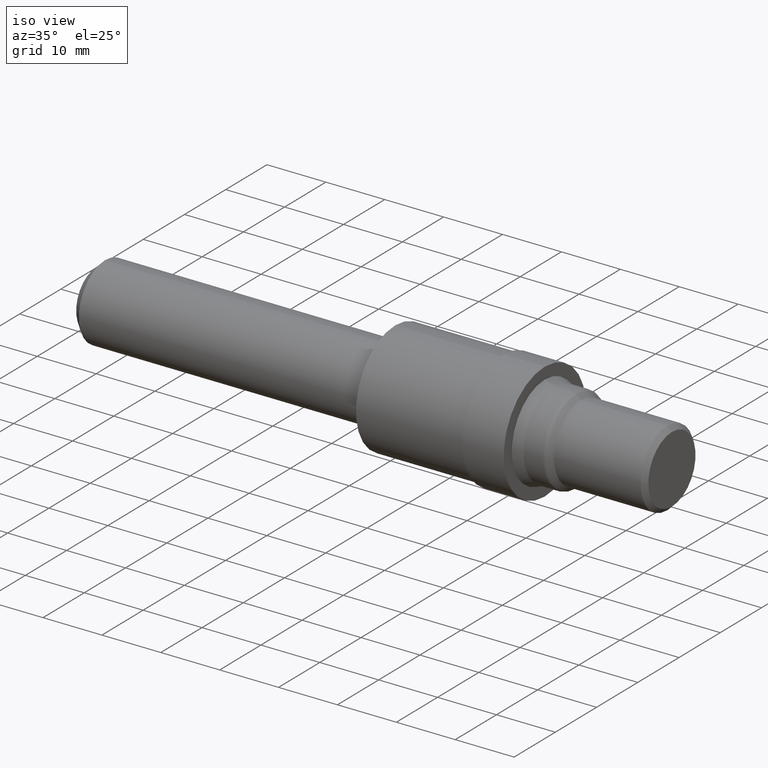
[diagram: clean part render]
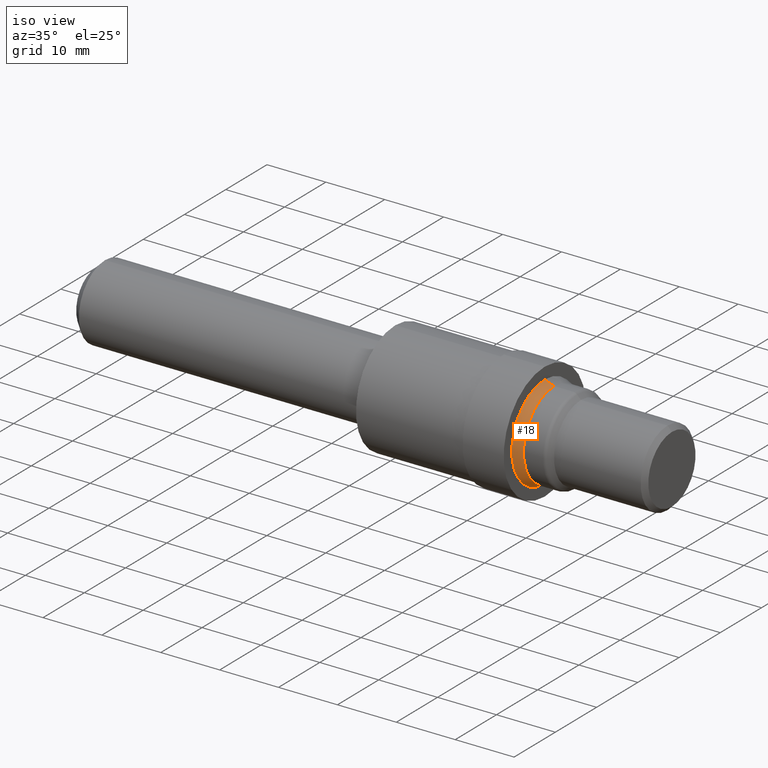
[diagram: same view with one face highlighted and labeled with its STEP entity id]
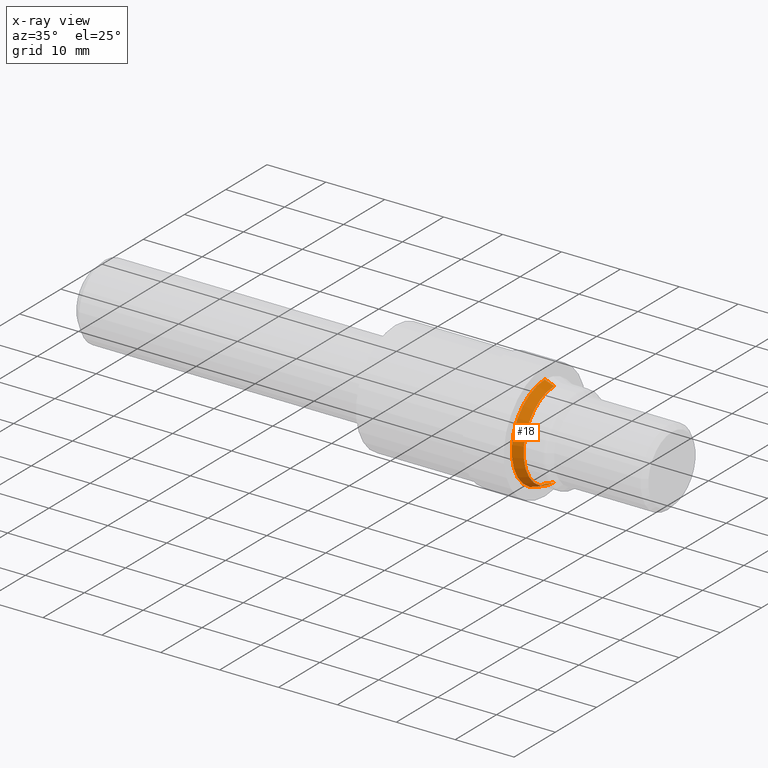
[diagram: x-ray of the same camera — body ghosted, the highlighted face saturated]
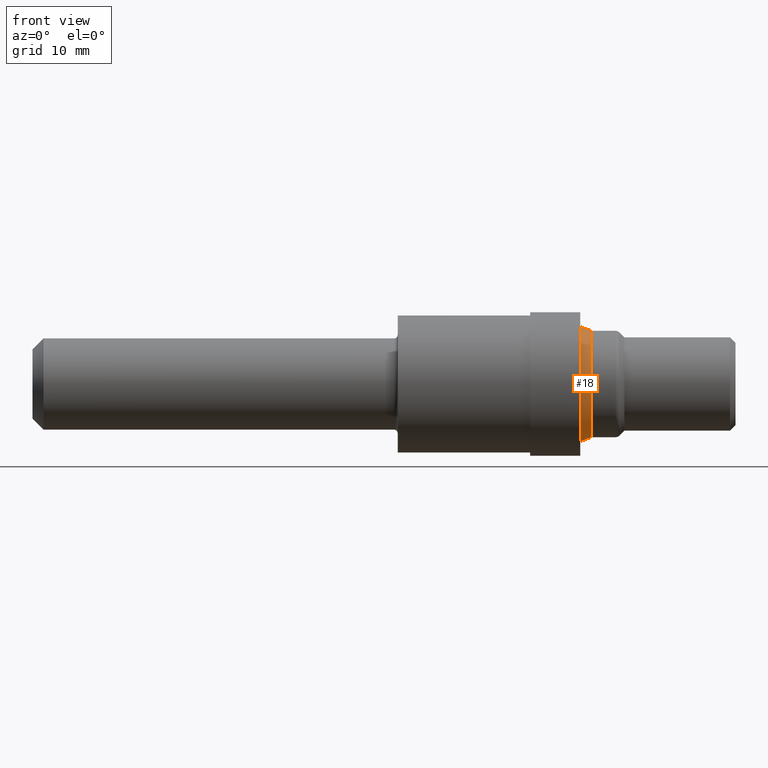
[diagram: same view with one face highlighted and labeled with its STEP entity id]
A machine part, iso view. The second image highlights one B-rep face of the part: STEP entity #18.
The next image is the same camera in x-ray: the body ghosted, the highlighted face saturated — about 0% of this face is hidden behind the body in this view.
A second angle (front view) of the same face is appended — the face is thin or edge-on in the first view.
In plain terms, the highlighted conical surface has half-angle 20.5 deg.
Its self-contained STEP definition (entity closure, byte-faithful):
#18 = ADVANCED_FACE ( 'NONE', ( #202 ), #190, .T. ) ;
#34 = CIRCLE ( 'NONE', #150, 0.3147677924678004002 ) ;
#45 = DIRECTION ( 'NONE',  ( -0.9366721892483974576, 0.0000000000000000000, 0.3502073812594680979 ) ) ;
#94 = LINE ( 'NONE', #196, #112 ) ;
#98 = EDGE_CURVE ( 'NONE', #242, #254, #199, .T. ) ;
#112 = VECTOR ( 'NONE', #731, 39.37007874015748143 ) ;
#150 = AXIS2_PLACEMENT_3D ( 'NONE', #659, #568, #709 ) ;
#190 = CONICAL_SURFACE ( 'NONE', #559, 0.2913999999999999924, 0.3577924966588383326 ) ;
#196 = CARTESIAN_POINT ( 'NONE',  ( 3.062500000000000444, 3.568620772715387109E-17, -0.2913999999999999924 ) ) ;
#199 = CIRCLE ( 'NONE', #612, 0.2913999999999999924 ) ;
#202 = FACE_OUTER_BOUND ( 'NONE', #640, .T. ) ;
#209 = DIRECTION ( 'NONE',  ( -1.000000000000000000, -0.0000000000000000000, -0.0000000000000000000 ) ) ;
#217 = ORIENTED_EDGE ( 'NONE', *, *, #445, .F. ) ;
#233 = VERTEX_POINT ( 'NONE', #525 ) ;
#236 = CARTESIAN_POINT ( 'NONE',  ( 3.000000000000000444, 3.854793695203700741E-17, -0.3147677924678004002 ) ) ;
#242 = VERTEX_POINT ( 'NONE', #742 ) ;
#254 = VERTEX_POINT ( 'NONE', #353 ) ;
#256 = DIRECTION ( 'NONE',  ( 0.0000000000000000000, 0.0000000000000000000, 1.000000000000000000 ) ) ;
#353 = CARTESIAN_POINT ( 'NONE',  ( 3.062500000000000444, 0.0000000000000000000, 0.2913999999999999924 ) ) ;
#355 = VECTOR ( 'NONE', #45, 39.37007874015748143 ) ;
#415 = DIRECTION ( 'NONE',  ( 0.0000000000000000000, 0.0000000000000000000, 1.000000000000000000 ) ) ;
#426 = CARTESIAN_POINT ( 'NONE',  ( 3.062500000000000444, 0.0000000000000000000, 0.0000000000000000000 ) ) ;
#429 = DIRECTION ( 'NONE',  ( -1.000000000000000000, -0.0000000000000000000, -0.0000000000000000000 ) ) ;
#436 = EDGE_CURVE ( 'NONE', #254, #233, #587, .T. ) ;
#445 = EDGE_CURVE ( 'NONE', #711, #233, #34, .T. ) ;
#447 = ORIENTED_EDGE ( 'NONE', *, *, #498, .F. ) ;
#452 = CARTESIAN_POINT ( 'NONE',  ( 3.062500000000000444, 0.0000000000000000000, 0.0000000000000000000 ) ) ;
#494 = ORIENTED_EDGE ( 'NONE', *, *, #436, .T. ) ;
#498 = EDGE_CURVE ( 'NONE', #242, #711, #94, .T. ) ;
#525 = CARTESIAN_POINT ( 'NONE',  ( 3.000000000000000444, 0.0000000000000000000, 0.3147677924678004002 ) ) ;
#559 = AXIS2_PLACEMENT_3D ( 'NONE', #452, #209, #256 ) ;
#568 = DIRECTION ( 'NONE',  ( -1.000000000000000000, -0.0000000000000000000, -0.0000000000000000000 ) ) ;
#587 = LINE ( 'NONE', #693, #355 ) ;
#612 = AXIS2_PLACEMENT_3D ( 'NONE', #426, #429, #415 ) ;
#640 = EDGE_LOOP ( 'NONE', ( #447, #712, #494, #217 ) ) ;
#659 = CARTESIAN_POINT ( 'NONE',  ( 3.000000000000000444, 0.0000000000000000000, 0.0000000000000000000 ) ) ;
#693 = CARTESIAN_POINT ( 'NONE',  ( 3.062500000000000444, 0.0000000000000000000, 0.2913999999999999924 ) ) ;
#709 = DIRECTION ( 'NONE',  ( 0.0000000000000000000, 0.0000000000000000000, 1.000000000000000000 ) ) ;
#711 = VERTEX_POINT ( 'NONE', #236 ) ;
#712 = ORIENTED_EDGE ( 'NONE', *, *, #98, .T. ) ;
#731 = DIRECTION ( 'NONE',  ( -0.9366721892483974576, 4.288803484971843689E-17, -0.3502073812594680979 ) ) ;
#742 = CARTESIAN_POINT ( 'NONE',  ( 3.062500000000000444, 3.568620772715387109E-17, -0.2913999999999999924 ) ) ;